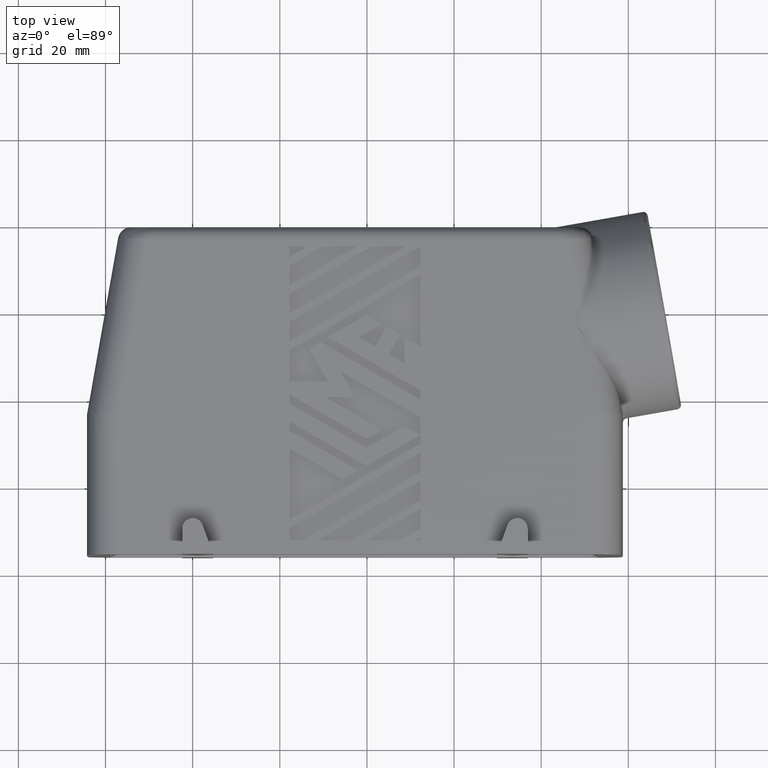
[diagram: clean part render]
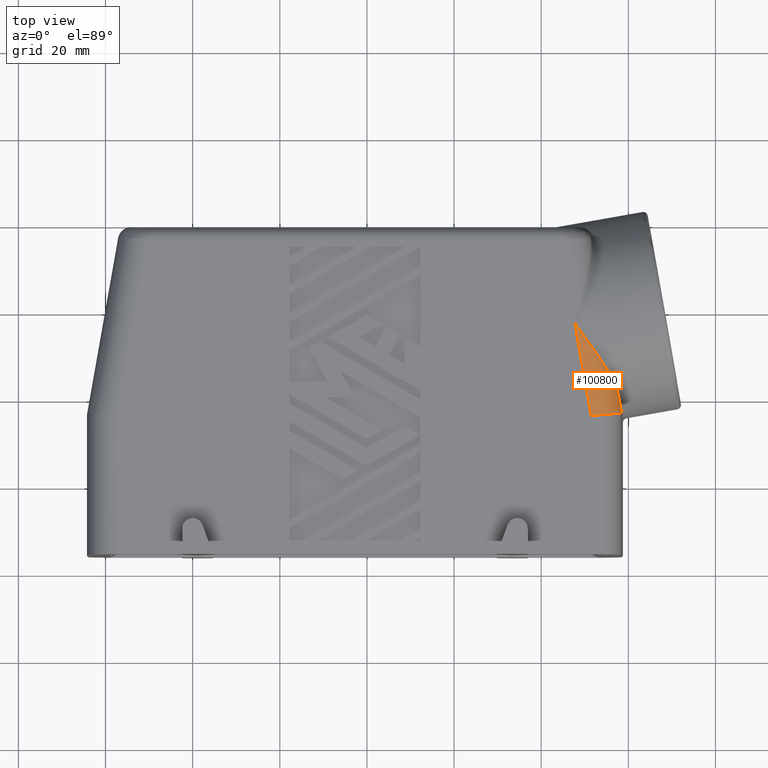
[diagram: same view with one face highlighted and labeled with its STEP entity id]
A machine part, top view. The second image highlights one B-rep face of the part: STEP entity #100800.
In plain terms, the highlighted cylindrical surface (edge-blend (fillet) strip) has radius 7 mm, axis along (-0.1736, 0.9848, -0).
Its self-contained STEP definition (entity closure, byte-faithful):
#1790=CARTESIAN_POINT('',(-63.9650885484969,56.5757725116938,
-16.122166845061));
#1800=VERTEX_POINT('',#1790);
#1830=CARTESIAN_POINT('',(-63.8858359524547,57.0252363187856,
-16.122166845061));
#1840=DIRECTION('',(0.173648177666931,0.984807753012208,0.));
#1850=VECTOR('',#1840,1.);
#1860=LINE('',#1830,#1850);
#1870=CARTESIAN_POINT('',(-63.2360386283859,60.7104200692128,
-16.122166845061));
#1880=VERTEX_POINT('',#1870);
#1890=EDGE_CURVE('',#1800,#1880,#1860,.T.);
#57520=CARTESIAN_POINT('',(-53.2589778486338,76.9878897211014,-23.));
#57530=CARTESIAN_POINT('',(-53.3866292584925,76.8172471111337,-23.));
#57540=CARTESIAN_POINT('',(-53.5142978732703,76.6466219971644,
-22.9980215976247));
#57550=CARTESIAN_POINT('',(-53.7694303012603,76.3054835913436,
-22.990108605929));
#57560=CARTESIAN_POINT('',(-53.8968994679622,76.1349834910697,
-22.9841768354392));
#57570=CARTESIAN_POINT('',(-54.1513372700215,75.7944097117102,
-22.9683723947965));
#57580=CARTESIAN_POINT('',(-54.2783019762195,75.6243418831266,
-22.9585092518603));
#57590=CARTESIAN_POINT('',(-54.5319136315297,75.2842666880627,
-22.9348335013097));
#57600=CARTESIAN_POINT('',(-54.6585561980058,75.1142652558275,
-22.921021682285));
#57610=CARTESIAN_POINT('',(-54.9102320794489,74.7759341542676,
-22.8895843108669));
#57620=CARTESIAN_POINT('',(-55.0352649287083,74.6076097664036,
-22.8719966669337));
#57630=CARTESIAN_POINT('',(-55.284801913198,74.271065533359,
-22.8329190241478));
#57640=CARTESIAN_POINT('',(-55.4093018274582,74.102851500581,
-22.8114303186701));
#57650=CARTESIAN_POINT('',(-55.6576603049228,73.7665526216416,
-22.764532796596));
#57660=CARTESIAN_POINT('',(-55.7815146843581,73.5984736112549,
-22.7391255701832));
#57670=CARTESIAN_POINT('',(-56.0284675870057,73.2624682741854,
-22.6843698540014));
#57680=CARTESIAN_POINT('',(-56.1515618502741,73.0945479676089,
-22.6550232395924));
#57690=CARTESIAN_POINT('',(-56.3918327849039,72.7657851972345,
-22.5936525018039));
#57700=CARTESIAN_POINT('',(-56.5090393475154,72.604943128673,
-22.5617904297507));
#57710=CARTESIAN_POINT('',(-56.7425383248247,72.2834468696624,
-22.4943963206528));
#57720=CARTESIAN_POINT('',(-56.8588270788693,72.1227980451032,
-22.4588664500749));
#57730=CARTESIAN_POINT('',(-57.0903750495997,71.8017153136721,
-22.3841106357027));
#57740=CARTESIAN_POINT('',(-57.2056307445198,71.6412867124323,
-22.3448871471852));
#57750=CARTESIAN_POINT('',(-57.4349944021476,71.3206695585479,
-22.2627147774283));
#57760=CARTESIAN_POINT('',(-57.5490988970214,71.160486361917,
-22.2197685978154));
#57770=CARTESIAN_POINT('',(-57.7760213266611,70.8404074665792,
-22.1301247228975));
#57780=CARTESIAN_POINT('',(-57.8888360164463,70.6805171501039,
-22.0834304730755));
#57790=CARTESIAN_POINT('',(-58.1130603433045,70.3610356313025,
-21.9862523678017));
#57800=CARTESIAN_POINT('',(-58.2244666853547,70.2014498858369,
-21.935771825787));
#57810=CARTESIAN_POINT('',(-58.4457326419575,69.8826130557884,
-21.8309861999759));
#57820=CARTESIAN_POINT('',(-58.5555890990704,69.7233674762337,
-21.7766848253159));
#57830=CARTESIAN_POINT('',(-58.773608777905,69.4052438621282,
-21.6642190748454));
#57840=CARTESIAN_POINT('',(-58.8817681902132,69.2463725166172,
-21.6060591223931));
#57850=CARTESIAN_POINT('',(-59.0815274837984,68.9507990699876,
-21.4940817799709));
#57860=CARTESIAN_POINT('',(-59.1733517157757,68.8140640720819,
-21.4407719808049));
#57870=CARTESIAN_POINT('',(-59.3555152258437,68.5409219737254,
-21.3312214507849));
#57880=CARTESIAN_POINT('',(-59.4458521978102,68.4045193176883,
-21.2749840486727));
#57890=CARTESIAN_POINT('',(-59.6249243814927,68.1320746158844,
-21.1595533180379));
#57900=CARTESIAN_POINT('',(-59.7136579801814,67.9960362245815,
-21.1003632887754));
#57910=CARTESIAN_POINT('',(-59.8894036312771,67.724348974672,
-20.978999630686));
#57920=CARTESIAN_POINT('',(-59.9764141830688,67.5887037984543,
-20.916829492235));
#57930=CARTESIAN_POINT('',(-60.1485690218082,67.3178613904505,
-20.7894904284786));
#57940=CARTESIAN_POINT('',(-60.2337122930843,67.1826678003286,
-20.7243258009347));
#57950=CARTESIAN_POINT('',(-60.4020114878768,66.9127403829218,
-20.5909609271599));
#57960=CARTESIAN_POINT('',(-60.4851662552775,66.7780102679733,
-20.5227646842342));
#57970=CARTESIAN_POINT('',(-60.6493397856304,66.5090529452329,
-20.3833128424218));
#57980=CARTESIAN_POINT('',(-60.7303576549635,66.3748294471837,
-20.3120615989018));
#57990=CARTESIAN_POINT('',(-60.8901028949238,66.1069253804228,
-20.1664741575952));
#58000=CARTESIAN_POINT('',(-60.9688295448756,65.9732485619598,
-20.0921425424241));
#58010=CARTESIAN_POINT('',(-61.1236508330248,65.7067846668491,
-19.9405428250674));
#58020=CARTESIAN_POINT('',(-61.1997503584685,65.5740003098282,
-19.8632867371665));
#58030=CARTESIAN_POINT('',(-61.3493244258286,65.3090704826439,
-19.7056627172803));
#58040=CARTESIAN_POINT('',(-61.422798835049,65.1769287162767,
-19.625299942223));
#58050=CARTESIAN_POINT('',(-61.566929308103,64.9133451718474,
-19.4614505633999));
#58060=CARTESIAN_POINT('',(-61.6375857040344,64.7819070324967,
-19.3779695430331));
#58070=CARTESIAN_POINT('',(-61.7758788694935,64.5197872291495,
-19.2078707637314));
#58080=CARTESIAN_POINT('',(-61.8435162575314,64.3891092046254,
-19.1212588050294));
#58090=CARTESIAN_POINT('',(-61.9755253159858,64.1286310225519,
-18.9449309956595));
#58100=CARTESIAN_POINT('',(-62.0398993496031,63.9988342019528,
-18.8552226391789));
#58110=CARTESIAN_POINT('',(-62.1651779662524,63.7401373280099,
-18.6726722036363));
#58120=CARTESIAN_POINT('',(-62.2260840924355,63.6112408420098,
-18.5798366147106));
#58130=CARTESIAN_POINT('',(-62.3441733815701,63.3544327045851,
-18.3910510933361));
#58140=CARTESIAN_POINT('',(-62.4013588355252,63.2265245367324,
-18.2951081998097));
#58150=CARTESIAN_POINT('',(-62.5117433892975,62.971774042994,
-18.1001290788599));
#58160=CARTESIAN_POINT('',(-62.5649416745638,62.8449438467802,
-18.001106956247));
#58170=CARTESIAN_POINT('',(-62.6512976258304,62.6314348151109,
-17.8310618438651));
#58180=CARTESIAN_POINT('',(-62.6855456316724,62.5445220966422,
-17.760895116322));
#58190=CARTESIAN_POINT('',(-62.7519100029174,62.3712755249511,
-17.6191167877375));
#58200=CARTESIAN_POINT('',(-62.7840255063268,62.2849480298395,
-17.5475119517961));
#58210=CARTESIAN_POINT('',(-62.8460169058535,62.1129211104788,
-17.4028904049381));
#58220=CARTESIAN_POINT('',(-62.8758942623054,62.0272228538878,
-17.3298764711184));
#58230=CARTESIAN_POINT('',(-62.9333033043096,61.8564908214046,
-17.1824627628588));
#58240=CARTESIAN_POINT('',(-62.9608365610468,61.7714582562695,
-17.108065842947));
#58250=CARTESIAN_POINT('',(-63.0134391109835,61.6021221120686,
-16.957940573585));
#58260=CARTESIAN_POINT('',(-63.0385108224034,61.5178196215407,
-16.8822156078219));
#58270=CARTESIAN_POINT('',(-63.0860841771638,61.3499631937886,
-16.7294542085802));
#58280=CARTESIAN_POINT('',(-63.1085877530105,61.2664105620157,
-16.6524208909575));
#58290=CARTESIAN_POINT('',(-63.1509057471027,61.1001026139842,
-16.4970926415591));
#58300=CARTESIAN_POINT('',(-63.1707223832334,61.0173486554735,
-16.4188010283013));
#58310=CARTESIAN_POINT('',(-63.1985760281295,60.8927941247252,
-16.2994451647203));
#58320=CARTESIAN_POINT('',(-63.2076425213144,60.8507142739227,
-16.258857253371));
#58330=CARTESIAN_POINT('',(-63.223133184792,60.7759010775145,
-16.1862252551526));
#58340=CARTESIAN_POINT('',(-63.2297014307007,60.7431349033569,
-16.1542520927126));
#58350=CARTESIAN_POINT('',(-63.2360386283859,60.7104200692128,
-16.122166845061));
#58360=B_SPLINE_CURVE_WITH_KNOTS('',3,(#57520,#57530,#57540,#57550,
#57560,#57570,#57580,#57590,#57600,#57610,#57620,#57630,#57640,#57650,
#57660,#57670,#57680,#57690,#57700,#57710,#57720,#57730,#57740,#57750,
#57760,#57770,#57780,#57790,#57800,#57810,#57820,#57830,#57840,#57850,
#57860,#57870,#57880,#57890,#57900,#57910,#57920,#57930,#57940,#57950,
#57960,#57970,#57980,#57990,#58000,#58010,#58020,#58030,#58040,#58050,
#58060,#58070,#58080,#58090,#58100,#58110,#58120,#58130,#58140,#58150,
#58160,#58170,#58180,#58190,#58200,#58210,#58220,#58230,#58240,#58250,
#58260,#58270,#58280,#58290,#58300,#58310,#58320,#58330,#58340,#58350),
.UNSPECIFIED.,.F.,.F.,(4,2,2,2,2,2,2,2,2,2,2,2,2,2,2,2,2,2,2,2,2,2,2,2,2
,2,2,2,2,2,2,2,2,2,2,2,2,2,2,2,2,4),(0.,0.638791981766715,
1.27715121216148,1.91401686122157,2.55082224148403,3.18159523424198,
3.81226874726478,4.44281816803647,5.07322620802231,5.67755650998845,
6.28171692435427,6.88568075518625,7.4894327724361,8.09287945103782,
8.69606893777808,9.29896696140792,9.90155809400738,10.4211703086387,
10.9405166305669,11.4595697648092,11.9783186599994,12.4966484068917,
13.0146320890583,13.5322345002541,14.0494450457505,14.5650779662431,
15.0802712391685,15.5949794644206,16.1091947629673,16.6226757430881,
17.1356077919799,17.6479327104339,18.1596506481205,18.5126818224055,
18.8654016218694,19.2177915562687,19.5698524299024,19.9214785633189,
20.2727600501592,20.6236776968973,20.8033651162317,20.9439272424315),
.UNSPECIFIED.);
#58370=CARTESIAN_POINT('',(-53.2589778486338,76.9878897211014,-23.));
#58380=VERTEX_POINT('',#58370);
#58390=EDGE_CURVE('',#58380,#1880,#58360,.T.);
#65840=CARTESIAN_POINT('',(-56.9932316183049,55.8098842073269,-23.));
#65850=DIRECTION('',(0.173648177666931,0.984807753012208,0.));
#65860=VECTOR('',#65850,1.);
#65870=LINE('',#65840,#65860);
#65900=CARTESIAN_POINT('',(-56.9661546824022,55.9634451416428,-23.));
#65910=VERTEX_POINT('',#65900);
#65920=EDGE_CURVE('',#65910,#58380,#65870,.T.);
#86380=CARTESIAN_POINT('',(-56.9932316183049,55.8098842073269,-16.));
#86390=DIRECTION('',(0.173648177666931,0.984807753012208,0.));
#86400=DIRECTION('',(0.984807753012208,-0.173648177666931,0.));
#86410=AXIS2_PLACEMENT_3D('',#86380,#86390,#86400);
#86420=CYLINDRICAL_SURFACE('',#86410,7.);
#100680=ORIENTED_EDGE('',*,*,#1890,.T.);
#100690=CARTESIAN_POINT('',(-56.9661546824022,55.9634451416428,-16.));
#100700=DIRECTION('',(0.0871557427476583,0.996194698091746,0.));
#100710=DIRECTION('',(-0.996194698091746,0.0871557427476583,0.));
#100720=AXIS2_PLACEMENT_3D('',#100690,#100700,#100710);
#100730=ELLIPSE('',#100720,7.02673886280343,7.);
#100740=EDGE_CURVE('',#65910,#1800,#100730,.T.);
#100750=ORIENTED_EDGE('',*,*,#100740,.T.);
#100760=ORIENTED_EDGE('',*,*,#65920,.F.);
#100770=ORIENTED_EDGE('',*,*,#58390,.F.);
#100780=EDGE_LOOP('',(#100770,#100760,#100750,#100680));
#100790=FACE_OUTER_BOUND('',#100780,.T.);
#100800=ADVANCED_FACE('',(#100790),#86420,.T.);